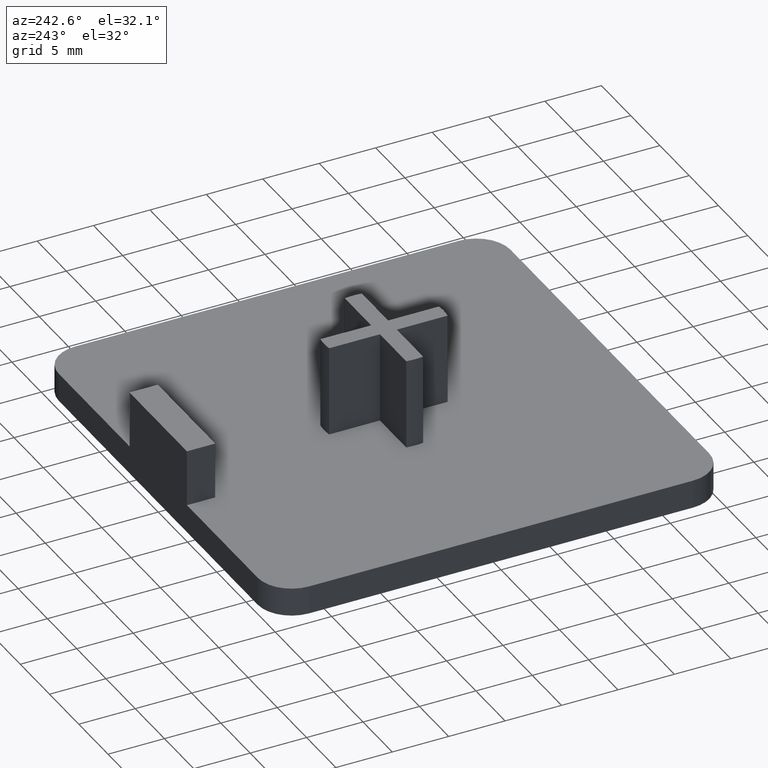
[diagram: clean part render]
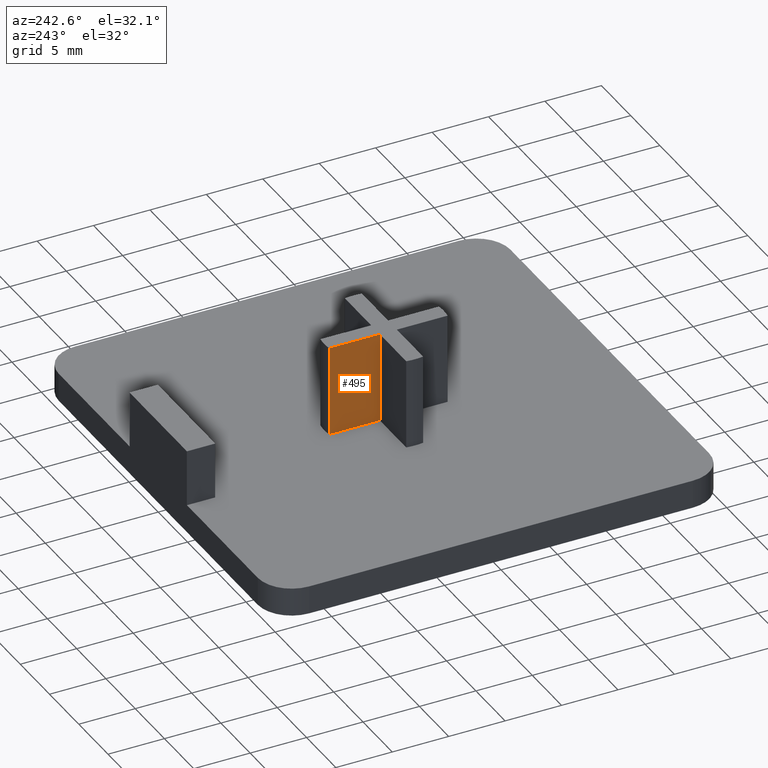
[diagram: same view with one face highlighted and labeled with its STEP entity id]
A machine part, auxiliary view. The second image highlights one B-rep face of the part: STEP entity #495.
In plain terms, the highlighted planar face has unit normal (-1, 0, 0).
Its self-contained STEP definition (entity closure, byte-faithful):
#45=FACE_OUTER_BOUND('',#72,.T.);
#72=EDGE_LOOP('',(#347,#348,#349,#350));
#106=LINE('',#738,#162);
#107=LINE('',#742,#163);
#108=LINE('',#744,#164);
#109=LINE('',#745,#165);
#162=VECTOR('',#591,8.);
#163=VECTOR('',#596,4.4966656077932);
#164=VECTOR('',#597,8.);
#165=VECTOR('',#598,4.4966656077932);
#217=VERTEX_POINT('',#735);
#218=VERTEX_POINT('',#737);
#219=VERTEX_POINT('',#741);
#220=VERTEX_POINT('',#743);
#269=EDGE_CURVE('',#217,#218,#106,.T.);
#271=EDGE_CURVE('',#219,#217,#107,.T.);
#272=EDGE_CURVE('',#219,#220,#108,.T.);
#273=EDGE_CURVE('',#218,#220,#109,.T.);
#347=ORIENTED_EDGE('',*,*,#271,.F.);
#348=ORIENTED_EDGE('',*,*,#272,.T.);
#349=ORIENTED_EDGE('',*,*,#273,.F.);
#350=ORIENTED_EDGE('',*,*,#269,.F.);
#474=PLANE('',#528);
#495=ADVANCED_FACE('',(#45),#474,.T.);
#528=AXIS2_PLACEMENT_3D('',#740,#594,#595);
#591=DIRECTION('',(0.,0.,1.));
#594=DIRECTION('center_axis',(-1.,0.,0.));
#595=DIRECTION('ref_axis',(0.,-1.,0.));
#596=DIRECTION('',(0.,1.,0.));
#597=DIRECTION('',(0.,0.,1.));
#598=DIRECTION('',(0.,-1.,0.));
#735=CARTESIAN_POINT('',(-0.749999999999997,5.24666560779321,2.5));
#737=CARTESIAN_POINT('',(-0.749999999999997,5.24666560779321,10.5));
#738=CARTESIAN_POINT('',(-0.749999999999997,5.24666560779321,0.));
#740=CARTESIAN_POINT('Origin',(-0.749999999999997,5.24666560779321,0.));
#741=CARTESIAN_POINT('',(-0.749999999999997,0.750000000000002,2.5));
#742=CARTESIAN_POINT('',(-0.749999999999997,11.9983328038966,2.5));
#743=CARTESIAN_POINT('',(-0.749999999999997,0.750000000000002,10.5));
#744=CARTESIAN_POINT('',(-0.749999999999997,0.750000000000002,0.));
#745=CARTESIAN_POINT('',(-0.749999999999997,5.24666560779321,10.5));